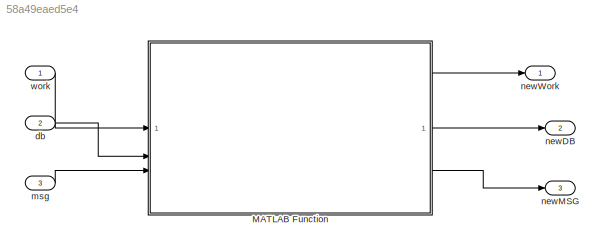
MODEL slx_58a49eaed5e4
KIND model
CONFIG AbsTol = auto
CONFIG EnableMultiTasking = off
CONFIG FixedStep = auto
CONFIG MaxStep = auto
CONFIG MinStep = auto
CONFIG RelTol = 1e-3
CONFIG SampleTimeConstraint = Unconstrained
CONFIG SolverName = VariableStepAuto
CONFIG StartTime = 0.0
CONFIG StopTime = 10.0
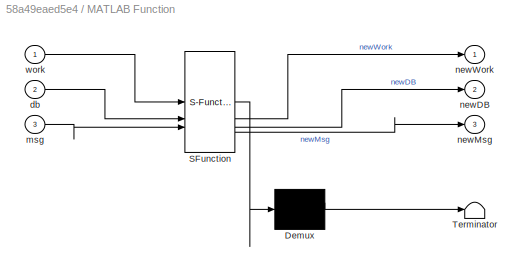
BLOCK [SubSystem] MATLAB Function
  ErrorFcn = Stateflow.Translate.translate
  PermitHierarchicalResolution = ExplicitOnly
  SFBlockType = MATLAB Function
  TreatAsAtomicUnit = on
BLOCK [Demux] MATLAB Function/ Demux 
  Outputs = 1
BLOCK [S-Function] MATLAB Function/ SFunction 
  EnableBusSupport = off
  FunctionName = sf_sfun
  PortCounts = [3 4]
  SFcnIsStateOwnerBlock = off
  SFunctionDeploymentMode = off
  Tag = Stateflow S-Function 2
BLOCK [Terminator] MATLAB Function/ Terminator 
BLOCK [Inport] MATLAB Function/db
  Port = 2
BLOCK [Inport] MATLAB Function/msg
  Port = 3
BLOCK [Outport] MATLAB Function/newDB
  Port = 2
BLOCK [Outport] MATLAB Function/newMsg
  Port = 3
BLOCK [Outport] MATLAB Function/newWork
BLOCK [Inport] MATLAB Function/work
BLOCK [Inport] db
  Port = 2
BLOCK [Inport] msg
  Port = 3
BLOCK [Outport] newDB
  Port = 2
BLOCK [Outport] newMSG
  Port = 3
BLOCK [Outport] newWork
BLOCK [Inport] work
LINE MATLAB Function:1 -> newWork:1
LINE MATLAB Function:2 -> newDB:1
LINE MATLAB Function:3 -> newMSG:1
LINE db:1 -> MATLAB Function:2
LINE msg:1 -> MATLAB Function:3
LINE work:1 -> MATLAB Function:1
CHART MATLAB Function states=1 transitions=1
  STATE_LABEL 'eML_blk_kernel()'
  STATE_LABEL 'SCRIPT:\nfunction [newWork, newDB, newMsg] = queryFunction(work, db, msg)\n    \n    newWork = work;\n    newDB = db;\n    newMsg = msg; \nend\n'
CHART  states=0 transitions=0
